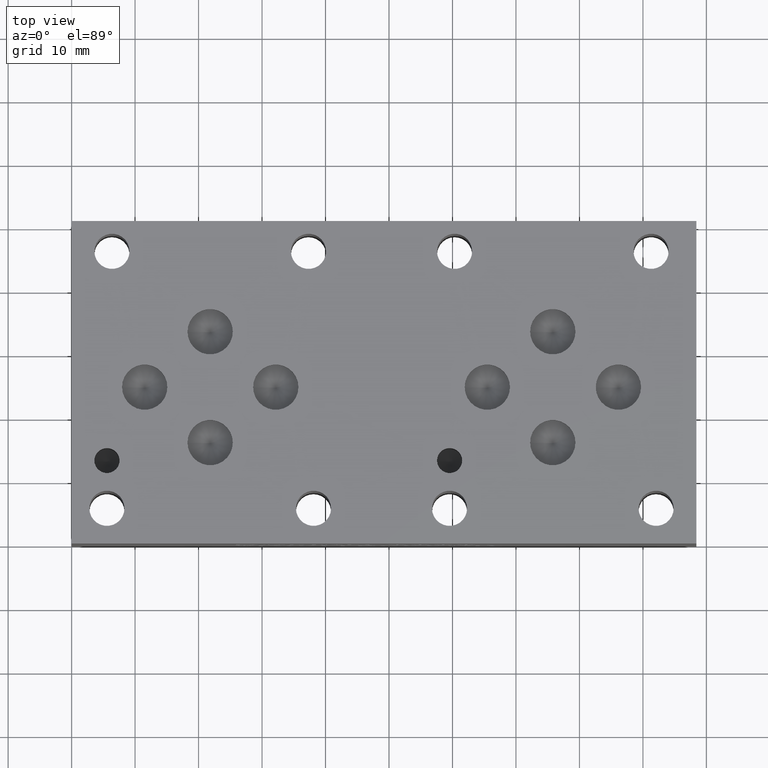
[diagram: clean part render]
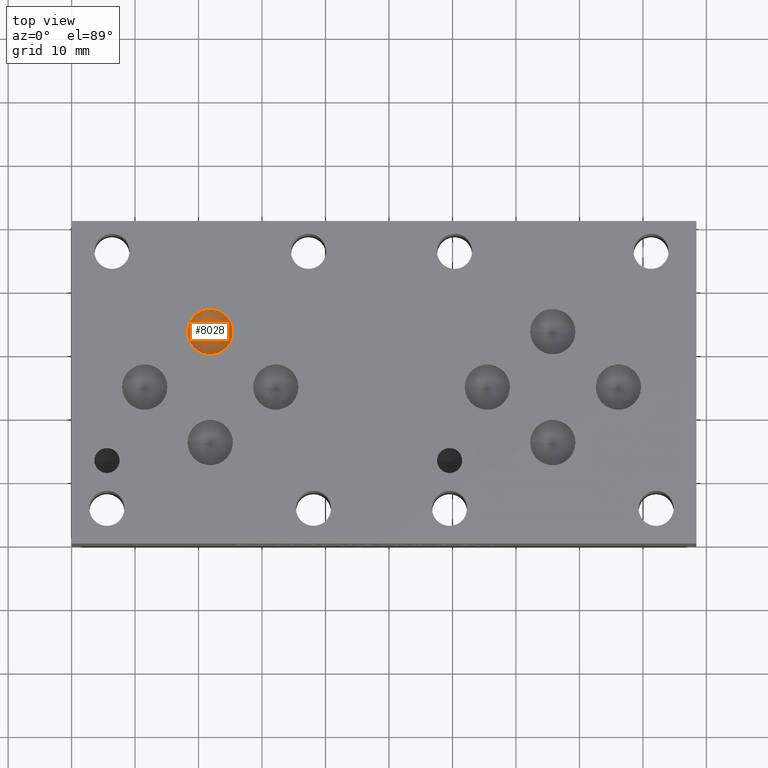
[diagram: same view with one face highlighted and labeled with its STEP entity id]
A machine part, top view. The second image highlights one B-rep face of the part: STEP entity #8028.
In plain terms, the highlighted conical surface has half-angle 60 deg.
Its self-contained STEP definition (entity closure, byte-faithful):
#121=CIRCLE('',#8426,3.5687);
#154=CONICAL_SURFACE('',#8425,1.78435,1.0471975511966);
#951=FACE_OUTER_BOUND('',#1424,.T.);
#1424=EDGE_LOOP('',(#6963,#6964,#6965));
#2235=LINE('',#13661,#3028);
#3028=VECTOR('',#9958,1.78435);
#3757=VERTEX_POINT('',#13658);
#3758=VERTEX_POINT('',#13660);
#4837=EDGE_CURVE('',#3757,#3757,#121,.T.);
#4838=EDGE_CURVE('',#3757,#3758,#2235,.T.);
#6963=ORIENTED_EDGE('',*,*,#4837,.T.);
#6964=ORIENTED_EDGE('',*,*,#4838,.T.);
#6965=ORIENTED_EDGE('',*,*,#4838,.F.);
#8028=ADVANCED_FACE('',(#951),#154,.F.);
#8425=AXIS2_PLACEMENT_3D('',#13657,#9954,#9955);
#8426=AXIS2_PLACEMENT_3D('',#13659,#9956,#9957);
#9954=DIRECTION('center_axis',(0.,0.,1.));
#9955=DIRECTION('ref_axis',(1.,0.,0.));
#9956=DIRECTION('center_axis',(0.,0.,1.));
#9957=DIRECTION('ref_axis',(1.,0.,0.));
#9958=DIRECTION('',(0.866025403784439,1.06057523872491E-16,-0.5));
#13657=CARTESIAN_POINT('Origin',(21.8186,33.3502,28.6594150471715));
#13658=CARTESIAN_POINT('',(18.2499,33.3502,29.68961));
#13659=CARTESIAN_POINT('Origin',(21.8186,33.3502,29.68961));
#13660=CARTESIAN_POINT('',(21.8186,33.3502,27.629220094343));
#13661=CARTESIAN_POINT('',(20.03425,33.3502,28.6594150471715));